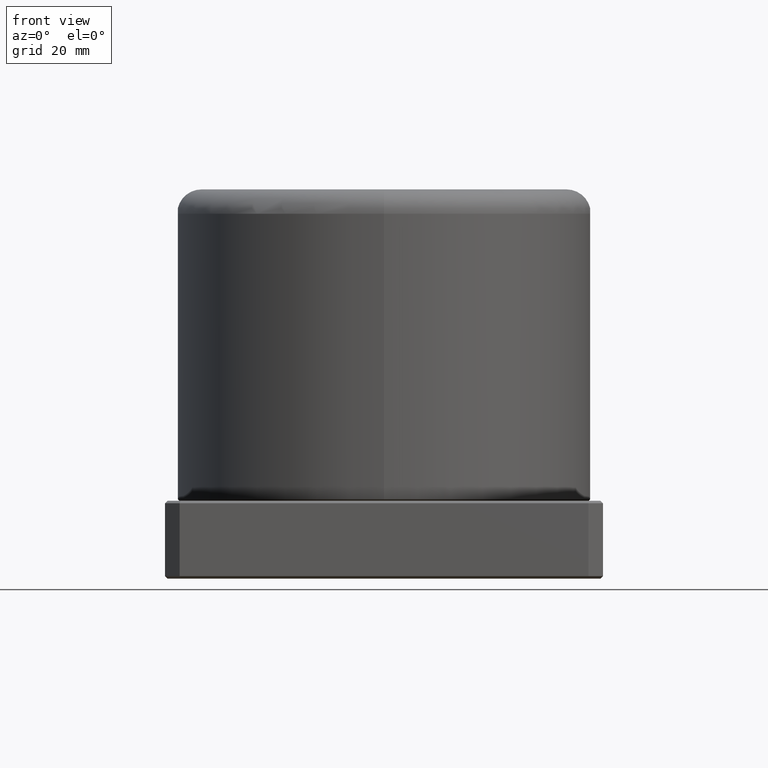
[diagram: clean part render]
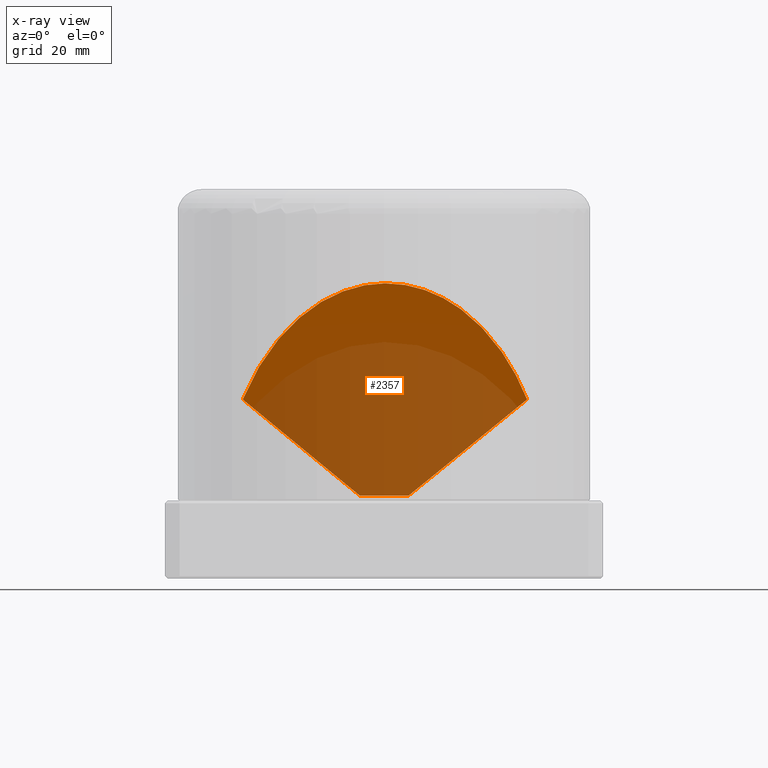
[diagram: x-ray — body ghosted, one internal face saturated and labeled with its STEP entity id]
A machine part, front view, then the same camera in x-ray: the body is ghosted and one INTERNAL B-rep face — a face not visible from any outside direction — is saturated and labeled: STEP entity #2357.
In plain terms, the highlighted planar face has unit normal (0.0088, -0.8164, -0.5774).
Its self-contained STEP definition (entity closure, byte-faithful):
#52 = AXIS2_PLACEMENT_3D ( 'NONE', #7253, #7217, #7177 ) ;
#53 = VECTOR ( 'NONE', #9027, 1000.000000000000000 ) ;
#239 = EDGE_CURVE ( 'NONE', #1120, #1425, #6219, .T. ) ;
#417 = CARTESIAN_POINT ( 'NONE',  ( -4.929352292754936500, -2.917234819212433500, 17.00000000000005000 ) ) ;
#1120 = VERTEX_POINT ( 'NONE', #417 ) ;
#1422 = VECTOR ( 'NONE', #1449, 1000.000000000000000 ) ;
#1425 = VERTEX_POINT ( 'NONE', #9303 ) ;
#1449 = DIRECTION ( 'NONE',  ( -0.7026664028910576400, -0.4158442681845549400, 0.5773503882965646000 ) ) ;
#1492 = ORIENTED_EDGE ( 'NONE', *, *, #6007, .F. ) ;
#1556 = CARTESIAN_POINT ( 'NONE',  ( 4.991075608619877500, -2.810326900122600800, 16.99999999999998600 ) ) ;
#1642 = CARTESIAN_POINT ( 'NONE',  ( 29.40850393066404700, -16.55905784035193000, 36.81462710110211100 ) ) ;
#1769 = VERTEX_POINT ( 'NONE', #1556 ) ;
#1805 = CARTESIAN_POINT ( 'NONE',  ( 1.362000283523305900E-014, -7.770042539494119200E-015, 12.94976585110212000 ) ) ;
#1883 =( BOUNDED_CURVE ( )  B_SPLINE_CURVE ( 3, ( #8533, #3159, #9466, #4054 ),
 .UNSPECIFIED., .F., .F. ) 
 B_SPLINE_CURVE_WITH_KNOTS ( ( 4, 4 ),
 ( 2.094395102393197000, 4.188790204786391400 ),
 .UNSPECIFIED. ) 
 CURVE ( )  GEOMETRIC_REPRESENTATION_ITEM ( )  RATIONAL_B_SPLINE_CURVE ( ( 1.000000000000000000, 0.6666666666666669600, 0.6666666666666669600, 1.000000000000000000 ) ) 
 REPRESENTATION_ITEM ( '' )  );
#2264 = EDGE_CURVE ( 'NONE', #1769, #7052, #7321, .T. ) ;
#2357 = ADVANCED_FACE ( 'NONE', ( #8016 ), #10850, .T. ) ;
#2711 = CARTESIAN_POINT ( 'NONE',  ( 0.03086165793254442400, -2.863780859667519200, 17.00000000000001400 ) ) ;
#3159 = CARTESIAN_POINT ( 'NONE',  ( -14.15872114605497600, -42.34253169696221200, 72.61191897610206100 ) ) ;
#4054 = CARTESIAN_POINT ( 'NONE',  ( 29.40850393066404700, -16.55905784035193000, 36.81462710110211100 ) ) ;
#4678 = VECTOR ( 'NONE', #6761, 1000.000000000000100 ) ;
#5565 = EDGE_CURVE ( 'NONE', #1769, #1120, #7001, .T. ) ;
#6007 = EDGE_CURVE ( 'NONE', #1425, #7052, #1883, .T. ) ;
#6219 = LINE ( 'NONE', #1805, #1422 ) ;
#6761 = DIRECTION ( 'NONE',  ( 0.7114649017115020100, -0.4006048211972092500, 0.5773503882965653800 ) ) ;
#7001 = LINE ( 'NONE', #2711, #53 ) ;
#7052 = VERTEX_POINT ( 'NONE', #1642 ) ;
#7124 = ORIENTED_EDGE ( 'NONE', *, *, #5565, .F. ) ;
#7177 = DIRECTION ( 'NONE',  ( 0.3221115584783681400, -0.5442830103532292400, 0.7745967651207068500 ) ) ;
#7217 = DIRECTION ( 'NONE',  ( 0.008798500635568667900, -0.8164492578146328400, -0.5773501500826870900 ) ) ;
#7253 = CARTESIAN_POINT ( 'NONE',  ( 1.362000283523305900E-014, -7.770042539494119200E-015, 12.94976585110212000 ) ) ;
#7321 = LINE ( 'NONE', #7546, #4678 ) ;
#7546 = CARTESIAN_POINT ( 'NONE',  ( 1.362000283523305900E-014, -7.770042539494119200E-015, 12.94976585110212000 ) ) ;
#8016 = FACE_OUTER_BOUND ( 'NONE', #10193, .T. ) ;
#8109 = ORIENTED_EDGE ( 'NONE', *, *, #2264, .T. ) ;
#8533 = CARTESIAN_POINT ( 'NONE',  ( -29.04481671781251600, -17.18898257107346700, 36.81462710110211100 ) ) ;
#9027 = DIRECTION ( 'NONE',  ( -0.9999419381163110500, -0.01077591741782080900, 5.867327075041479500E-015 ) ) ;
#9303 = CARTESIAN_POINT ( 'NONE',  ( -29.04481671781251600, -17.18898257107346700, 36.81462710110211100 ) ) ;
#9466 = CARTESIAN_POINT ( 'NONE',  ( 15.06793917818332000, -42.02756933160139100, 72.61191897610203200 ) ) ;
#10193 = EDGE_LOOP ( 'NONE', ( #7124, #8109, #1492, #11443 ) ) ;
#10850 = PLANE ( 'NONE',  #52 ) ;
#11443 = ORIENTED_EDGE ( 'NONE', *, *, #239, .F. ) ;